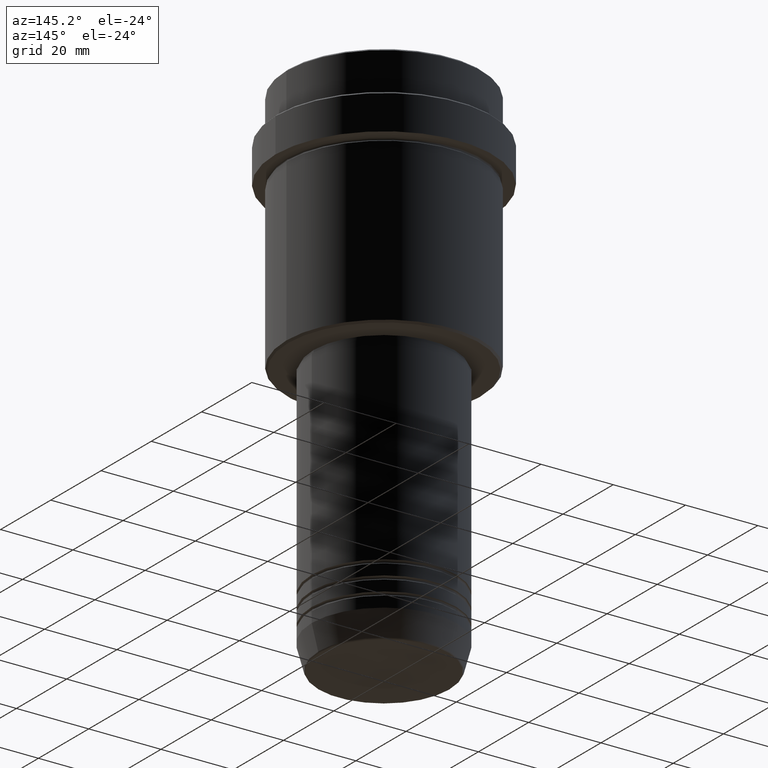
[diagram: clean part render]
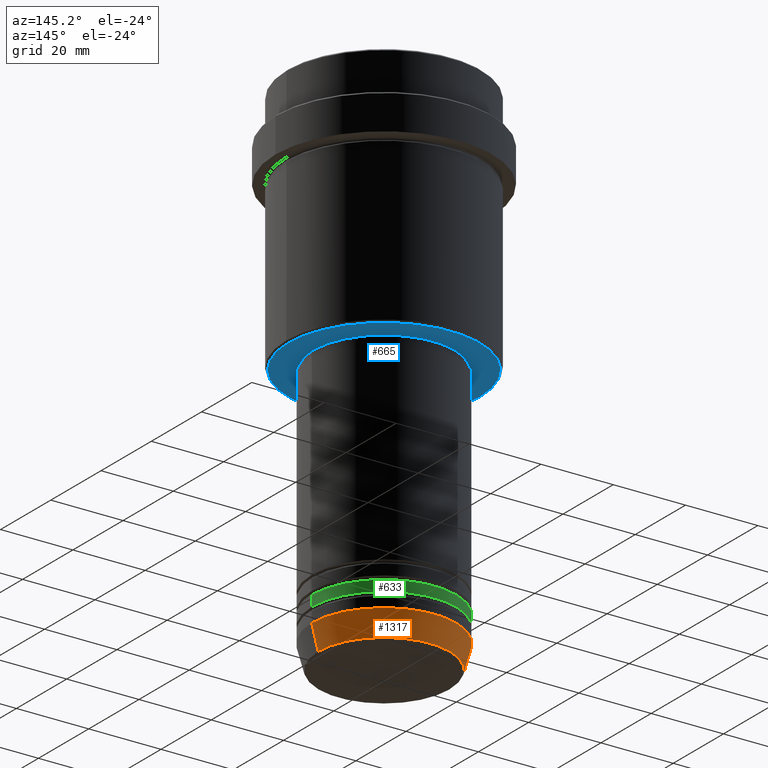
[diagram: same view with three faces highlighted in distinct colors, each labeled with its STEP entity id]
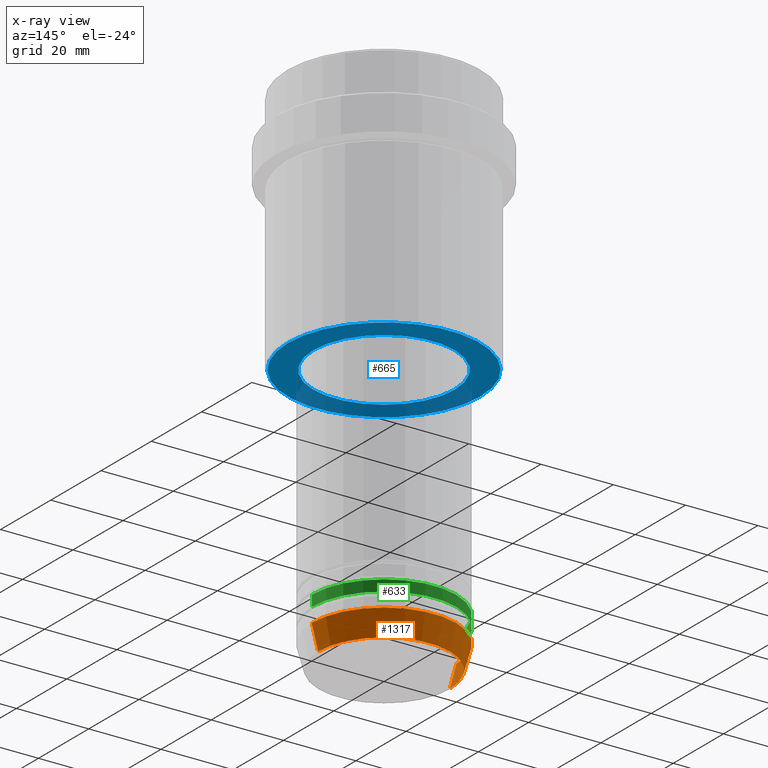
[diagram: x-ray of the same camera — body ghosted, the three highlighted faces saturated]
A machine part, auxiliary view with three faces highlighted in distinct colors.
The next image is the same camera in x-ray (body ghosted, the three faces saturated) — at least one of them is partly hidden behind the body in this view.
Their STEP definitions:

[orange] entity #1317 — the highlighted conical surface has half-angle 15 deg.
#43 = CARTESIAN_POINT ( 'NONE',  ( 0.000000000000000000, 0.000000000000000000, -136.0000000000000000 ) ) ;
#77 = CARTESIAN_POINT ( 'NONE',  ( -20.00000000000000000, 2.449293598294706513E-15, -136.0000000000000000 ) ) ;
#108 = VECTOR ( 'NONE', #837, 1000.000000000000000 ) ;
#169 = DIRECTION ( 'NONE',  ( -0.000000000000000000, -0.000000000000000000, 1.000000000000000000 ) ) ;
#174 = ORIENTED_EDGE ( 'NONE', *, *, #794, .T. ) ;
#202 = DIRECTION ( 'NONE',  ( -0.000000000000000000, -0.000000000000000000, 1.000000000000000000 ) ) ;
#227 = AXIS2_PLACEMENT_3D ( 'NONE', #43, #169, #614 ) ;
#290 = EDGE_CURVE ( 'NONE', #840, #485, #584, .T. ) ;
#306 = DIRECTION ( 'NONE',  ( 1.000000000000000000, 0.000000000000000000, 0.000000000000000000 ) ) ;
#361 = EDGE_CURVE ( 'NONE', #898, #840, #406, .T. ) ;
#398 = EDGE_LOOP ( 'NONE', ( #1115, #174, #577, #974 ) ) ;
#406 = LINE ( 'NONE', #725, #108 ) ;
#475 = EDGE_CURVE ( 'NONE', #898, #933, #870, .T. ) ;
#485 = VERTEX_POINT ( 'NONE', #1079 ) ;
#521 = CARTESIAN_POINT ( 'NONE',  ( 0.000000000000000000, 0.000000000000000000, -142.6294095225512706 ) ) ;
#577 = ORIENTED_EDGE ( 'NONE', *, *, #290, .F. ) ;
#584 = CIRCLE ( 'NONE', #627, 20.00000000000000000 ) ;
#614 = DIRECTION ( 'NONE',  ( 1.000000000000000000, 0.000000000000000000, 0.000000000000000000 ) ) ;
#627 = AXIS2_PLACEMENT_3D ( 'NONE', #1291, #637, #306 ) ;
#634 = DIRECTION ( 'NONE',  ( 1.000000000000000000, 0.000000000000000000, 0.000000000000000000 ) ) ;
#637 = DIRECTION ( 'NONE',  ( -0.000000000000000000, -0.000000000000000000, 1.000000000000000000 ) ) ;
#698 = CONICAL_SURFACE ( 'NONE', #227, 20.00000000000000000, 0.2617993877991495744 ) ;
#725 = CARTESIAN_POINT ( 'NONE',  ( 20.00000000000000000, 0.000000000000000000, -136.0000000000000000 ) ) ;
#794 = EDGE_CURVE ( 'NONE', #933, #485, #1191, .T. ) ;
#837 = DIRECTION ( 'NONE',  ( 0.2588190451025209060, 0.000000000000000000, 0.9659258262890682012 ) ) ;
#840 = VERTEX_POINT ( 'NONE', #908 ) ;
#870 = CIRCLE ( 'NONE', #1282, 18.22365507213719127 ) ;
#898 = VERTEX_POINT ( 'NONE', #1400 ) ;
#908 = CARTESIAN_POINT ( 'NONE',  ( 20.00000000000000000, 0.000000000000000000, -136.0000000000000000 ) ) ;
#933 = VERTEX_POINT ( 'NONE', #1087 ) ;
#974 = ORIENTED_EDGE ( 'NONE', *, *, #361, .F. ) ;
#1079 = CARTESIAN_POINT ( 'NONE',  ( -20.00000000000000000, 2.449293598294706513E-15, -136.0000000000000000 ) ) ;
#1087 = CARTESIAN_POINT ( 'NONE',  ( -18.22365507213719127, 2.340523841790265113E-15, -142.6294095225512706 ) ) ;
#1115 = ORIENTED_EDGE ( 'NONE', *, *, #475, .T. ) ;
#1191 = LINE ( 'NONE', #77, #1216 ) ;
#1216 = VECTOR ( 'NONE', #1290, 1000.000000000000000 ) ;
#1282 = AXIS2_PLACEMENT_3D ( 'NONE', #521, #202, #634 ) ;
#1290 = DIRECTION ( 'NONE',  ( -0.2588190451025209060, 3.169619151431766790E-17, 0.9659258262890682012 ) ) ;
#1291 = CARTESIAN_POINT ( 'NONE',  ( 0.000000000000000000, 0.000000000000000000, -136.0000000000000000 ) ) ;
#1317 = ADVANCED_FACE ( 'NONE', ( #1361 ), #698, .T. ) ;
#1361 = FACE_OUTER_BOUND ( 'NONE', #398, .T. ) ;
#1400 = CARTESIAN_POINT ( 'NONE',  ( 18.22365507213719127, 0.000000000000000000, -142.6294095225512706 ) ) ;

[blue] entity #665 — the highlighted planar face has unit normal (0, 0, -1).
#22 = FACE_BOUND ( 'NONE', #1080, .T. ) ;
#60 = CARTESIAN_POINT ( 'NONE',  ( 19.50000000000000000, 0.000000000000000000, -68.00000000000001421 ) ) ;
#91 = CARTESIAN_POINT ( 'NONE',  ( 0.000000000000000000, 0.000000000000000000, -68.00000000000001421 ) ) ;
#140 = DIRECTION ( 'NONE',  ( -0.000000000000000000, -0.000000000000000000, 1.000000000000000000 ) ) ;
#188 = EDGE_LOOP ( 'NONE', ( #753, #640 ) ) ;
#203 = CIRCLE ( 'NONE', #321, 19.50000000000000000 ) ;
#218 = ORIENTED_EDGE ( 'NONE', *, *, #868, .T. ) ;
#240 = CARTESIAN_POINT ( 'NONE',  ( 0.000000000000000000, 0.000000000000000000, -68.00000000000001421 ) ) ;
#256 = CARTESIAN_POINT ( 'NONE',  ( -26.49999999999998224, 3.275930187719168763E-15, -68.00000000000001421 ) ) ;
#321 = AXIS2_PLACEMENT_3D ( 'NONE', #240, #140, #1005 ) ;
#335 = VERTEX_POINT ( 'NONE', #60 ) ;
#374 = EDGE_CURVE ( 'NONE', #430, #477, #562, .T. ) ;
#395 = DIRECTION ( 'NONE',  ( -1.000000000000000000, 0.000000000000000000, 0.000000000000000000 ) ) ;
#430 = VERTEX_POINT ( 'NONE', #256 ) ;
#449 = FACE_OUTER_BOUND ( 'NONE', #188, .T. ) ;
#477 = VERTEX_POINT ( 'NONE', #1071 ) ;
#554 = DIRECTION ( 'NONE',  ( 0.000000000000000000, 0.000000000000000000, -1.000000000000000000 ) ) ;
#562 = CIRCLE ( 'NONE', #1370, 26.49999999999998224 ) ;
#575 = DIRECTION ( 'NONE',  ( 1.000000000000000000, 0.000000000000000000, 0.000000000000000000 ) ) ;
#623 = VERTEX_POINT ( 'NONE', #951 ) ;
#640 = ORIENTED_EDGE ( 'NONE', *, *, #374, .T. ) ;
#665 = ADVANCED_FACE ( 'NONE', ( #449, #22 ), #750, .T. ) ;
#677 = CIRCLE ( 'NONE', #850, 19.50000000000000000 ) ;
#678 = CARTESIAN_POINT ( 'NONE',  ( 0.000000000000000000, 0.000000000000000000, -68.00000000000001421 ) ) ;
#739 = CIRCLE ( 'NONE', #1394, 26.49999999999998224 ) ;
#750 = PLANE ( 'NONE',  #1329 ) ;
#753 = ORIENTED_EDGE ( 'NONE', *, *, #812, .T. ) ;
#812 = EDGE_CURVE ( 'NONE', #477, #430, #739, .T. ) ;
#850 = AXIS2_PLACEMENT_3D ( 'NONE', #678, #1121, #575 ) ;
#868 = EDGE_CURVE ( 'NONE', #623, #335, #203, .T. ) ;
#951 = CARTESIAN_POINT ( 'NONE',  ( -19.50000000000000000, 2.388061258337338939E-15, -68.00000000000001421 ) ) ;
#956 = DIRECTION ( 'NONE',  ( 0.000000000000000000, 0.000000000000000000, -1.000000000000000000 ) ) ;
#981 = CARTESIAN_POINT ( 'NONE',  ( 0.000000000000000000, 27.00000000000000000, -68.00000000000001421 ) ) ;
#988 = DIRECTION ( 'NONE',  ( -1.000000000000000000, 0.000000000000000000, -0.000000000000000000 ) ) ;
#1005 = DIRECTION ( 'NONE',  ( 1.000000000000000000, 0.000000000000000000, 0.000000000000000000 ) ) ;
#1046 = DIRECTION ( 'NONE',  ( 0.000000000000000000, 0.000000000000000000, -1.000000000000000000 ) ) ;
#1071 = CARTESIAN_POINT ( 'NONE',  ( 26.49999999999998224, 0.000000000000000000, -68.00000000000001421 ) ) ;
#1080 = EDGE_LOOP ( 'NONE', ( #1195, #218 ) ) ;
#1121 = DIRECTION ( 'NONE',  ( -0.000000000000000000, -0.000000000000000000, 1.000000000000000000 ) ) ;
#1178 = EDGE_CURVE ( 'NONE', #335, #623, #677, .T. ) ;
#1195 = ORIENTED_EDGE ( 'NONE', *, *, #1178, .T. ) ;
#1329 = AXIS2_PLACEMENT_3D ( 'NONE', #981, #554, #988 ) ;
#1370 = AXIS2_PLACEMENT_3D ( 'NONE', #91, #956, #1408 ) ;
#1380 = CARTESIAN_POINT ( 'NONE',  ( 0.000000000000000000, 0.000000000000000000, -68.00000000000001421 ) ) ;
#1394 = AXIS2_PLACEMENT_3D ( 'NONE', #1380, #1046, #395 ) ;
#1408 = DIRECTION ( 'NONE',  ( -1.000000000000000000, 0.000000000000000000, 0.000000000000000000 ) ) ;

[green] entity #633 — the highlighted cylindrical surface (partial cylindrical patch) has radius 20 mm, axis along (-0, -0, 1).
#12 = DIRECTION ( 'NONE',  ( 1.000000000000000000, 0.000000000000000000, 0.000000000000000000 ) ) ;
#20 = CIRCLE ( 'NONE', #348, 20.00000000000000000 ) ;
#27 = EDGE_CURVE ( 'NONE', #298, #727, #760, .T. ) ;
#93 = DIRECTION ( 'NONE',  ( -0.000000000000000000, -0.000000000000000000, 1.000000000000000000 ) ) ;
#219 = ORIENTED_EDGE ( 'NONE', *, *, #619, .F. ) ;
#273 = CARTESIAN_POINT ( 'NONE',  ( -20.00000000000000000, 2.449293598294706513E-15, -128.9999999999998863 ) ) ;
#281 = VERTEX_POINT ( 'NONE', #836 ) ;
#283 = LINE ( 'NONE', #288, #386 ) ;
#288 = CARTESIAN_POINT ( 'NONE',  ( -20.00000000000000000, 2.449293598294706513E-15, 0.000000000000000000 ) ) ;
#298 = VERTEX_POINT ( 'NONE', #530 ) ;
#317 = EDGE_LOOP ( 'NONE', ( #768, #1367, #675, #219 ) ) ;
#332 = VERTEX_POINT ( 'NONE', #273 ) ;
#348 = AXIS2_PLACEMENT_3D ( 'NONE', #1254, #930, #607 ) ;
#360 = DIRECTION ( 'NONE',  ( -0.000000000000000000, -0.000000000000000000, 1.000000000000000000 ) ) ;
#386 = VECTOR ( 'NONE', #687, 1000.000000000000000 ) ;
#427 = AXIS2_PLACEMENT_3D ( 'NONE', #832, #93, #527 ) ;
#527 = DIRECTION ( 'NONE',  ( 1.000000000000000000, 0.000000000000000000, 0.000000000000000000 ) ) ;
#530 = CARTESIAN_POINT ( 'NONE',  ( 20.00000000000000000, 0.000000000000000000, -131.9999999999998863 ) ) ;
#607 = DIRECTION ( 'NONE',  ( 1.000000000000000000, 0.000000000000000000, 0.000000000000000000 ) ) ;
#619 = EDGE_CURVE ( 'NONE', #298, #281, #1074, .T. ) ;
#633 = ADVANCED_FACE ( 'NONE', ( #839 ), #1060, .T. ) ;
#675 = ORIENTED_EDGE ( 'NONE', *, *, #1320, .F. ) ;
#687 = DIRECTION ( 'NONE',  ( -0.000000000000000000, -0.000000000000000000, 1.000000000000000000 ) ) ;
#727 = VERTEX_POINT ( 'NONE', #1230 ) ;
#760 = CIRCLE ( 'NONE', #1061, 20.00000000000000000 ) ;
#768 = ORIENTED_EDGE ( 'NONE', *, *, #27, .T. ) ;
#832 = CARTESIAN_POINT ( 'NONE',  ( 0.000000000000000000, 0.000000000000000000, 0.000000000000000000 ) ) ;
#836 = CARTESIAN_POINT ( 'NONE',  ( 20.00000000000000000, 0.000000000000000000, -128.9999999999998863 ) ) ;
#839 = FACE_OUTER_BOUND ( 'NONE', #317, .T. ) ;
#930 = DIRECTION ( 'NONE',  ( -0.000000000000000000, -0.000000000000000000, 1.000000000000000000 ) ) ;
#968 = CARTESIAN_POINT ( 'NONE',  ( 20.00000000000000000, 0.000000000000000000, 0.000000000000000000 ) ) ;
#987 = CARTESIAN_POINT ( 'NONE',  ( 0.000000000000000000, 0.000000000000000000, -131.9999999999998863 ) ) ;
#1060 = CYLINDRICAL_SURFACE ( 'NONE', #427, 20.00000000000000000 ) ;
#1061 = AXIS2_PLACEMENT_3D ( 'NONE', #987, #360, #12 ) ;
#1074 = LINE ( 'NONE', #968, #1350 ) ;
#1230 = CARTESIAN_POINT ( 'NONE',  ( -20.00000000000000000, 2.449293598294706513E-15, -131.9999999999998863 ) ) ;
#1254 = CARTESIAN_POINT ( 'NONE',  ( 0.000000000000000000, 0.000000000000000000, -128.9999999999998863 ) ) ;
#1289 = EDGE_CURVE ( 'NONE', #727, #332, #283, .T. ) ;
#1315 = DIRECTION ( 'NONE',  ( -0.000000000000000000, -0.000000000000000000, 1.000000000000000000 ) ) ;
#1320 = EDGE_CURVE ( 'NONE', #281, #332, #20, .T. ) ;
#1350 = VECTOR ( 'NONE', #1315, 1000.000000000000000 ) ;
#1367 = ORIENTED_EDGE ( 'NONE', *, *, #1289, .T. ) ;